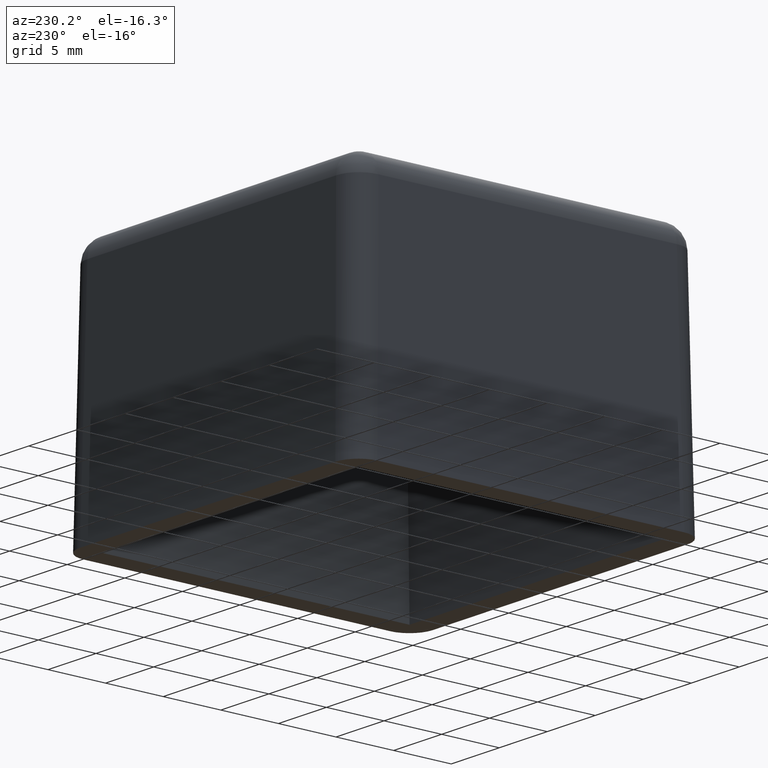
[diagram: clean part render]
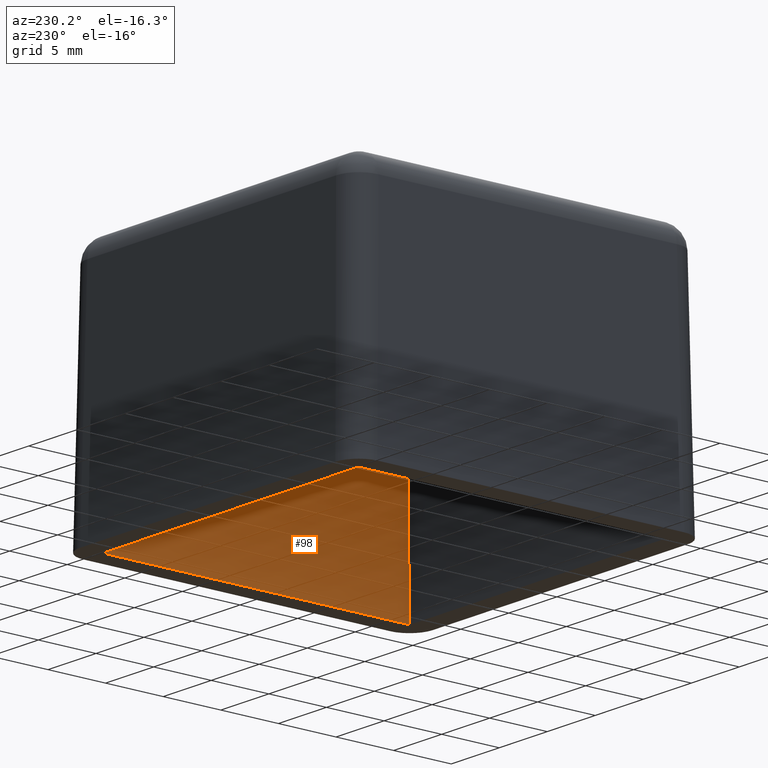
[diagram: same view with one face highlighted and labeled with its STEP entity id]
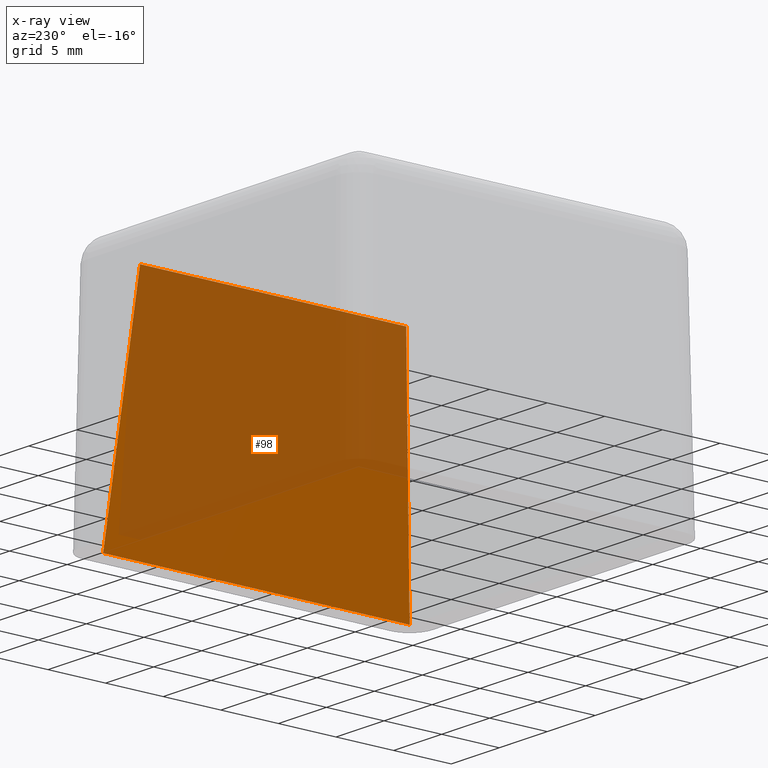
[diagram: x-ray of the same camera — body ghosted, the highlighted face saturated]
A machine part, auxiliary view. The second image highlights one B-rep face of the part: STEP entity #98.
The next image is the same camera in x-ray: the body ghosted, the highlighted face saturated — about 67% of this face is hidden behind the body in this view.
In plain terms, the highlighted planar face has unit normal (0.9962, 0, 0.0872).
Its self-contained STEP definition (entity closure, byte-faithful):
#98 = ADVANCED_FACE( '', ( #215 ), #216, .F. );
#215 = FACE_OUTER_BOUND( '', #396, .T. );
#216 = PLANE( '', #397 );
#396 = EDGE_LOOP( '', ( #761, #762, #763, #764 ) );
#397 = AXIS2_PLACEMENT_3D( '', #765, #766, #767 );
#761 = ORIENTED_EDGE( '', *, *, #1321, .F. );
#762 = ORIENTED_EDGE( '', *, *, #1332, .F. );
#763 = ORIENTED_EDGE( '', *, *, #1327, .T. );
#764 = ORIENTED_EDGE( '', *, *, #1329, .T. );
#765 = CARTESIAN_POINT( '', ( 13.3000000000000, -13.3000000000000, 0.000000000000000 ) );
#766 = DIRECTION( '', ( 0.996194698091746, 0.000000000000000, 0.0871557427476582 ) );
#767 = DIRECTION( '', ( 0.0871557427476582, 0.000000000000000, -0.996194698091746 ) );
#1321 = EDGE_CURVE( '', #1601, #1596, #1603, .F. );
#1327 = EDGE_CURVE( '', #1614, #1612, #1615, .F. );
#1329 = EDGE_CURVE( '', #1612, #1596, #1617, .T. );
#1332 = EDGE_CURVE( '', #1614, #1601, #1620, .T. );
#1596 = VERTEX_POINT( '', #2112 );
#1601 = VERTEX_POINT( '', #2119 );
#1603 = LINE( '', #2122, #2123 );
#1612 = VERTEX_POINT( '', #2134 );
#1614 = VERTEX_POINT( '', #2137 );
#1615 = LINE( '', #2138, #2139 );
#1617 = LINE( '', #2142, #2143 );
#1620 = LINE( '', #2148, #2149 );
#2112 = CARTESIAN_POINT( '', ( 13.3000000000000, 13.3000000000000, 0.000000000000000 ) );
#2119 = CARTESIAN_POINT( '', ( 13.3000000000000, -13.3000000000000, 0.000000000000000 ) );
#2122 = CARTESIAN_POINT( '', ( 13.3000000000000, -13.3000000000000, 0.000000000000000 ) );
#2123 = VECTOR( '', #2502, 1000.00000000000 );
#2134 = CARTESIAN_POINT( '', ( 11.5502267294815, 11.5502267294815, 20.0000000000000 ) );
#2137 = CARTESIAN_POINT( '', ( 11.5502267294815, -11.5502267294815, 20.0000000000000 ) );
#2138 = CARTESIAN_POINT( '', ( 11.5502267294815, -13.3000000000000, 20.0000000000000 ) );
#2139 = VECTOR( '', #2512, 1000.00000000000 );
#2142 = CARTESIAN_POINT( '', ( 13.0994663931050, 13.0994663931050, 2.29210961527103 ) );
#2143 = VECTOR( '', #2514, 1000.00000000000 );
#2148 = CARTESIAN_POINT( '', ( 13.3000000000000, -13.3000000000000, 0.000000000000000 ) );
#2149 = VECTOR( '', #2517, 1000.00000000000 );
#2502 = DIRECTION( '', ( 0.000000000000000, -1.00000000000000, 0.000000000000000 ) );
#2512 = DIRECTION( '', ( 0.000000000000000, -1.00000000000000, 0.000000000000000 ) );
#2514 = DIRECTION( '', ( 0.0868265938642476, 0.0868265938642476, -0.992432509138967 ) );
#2517 = DIRECTION( '', ( 0.0868265938642476, -0.0868265938642476, -0.992432509138967 ) );